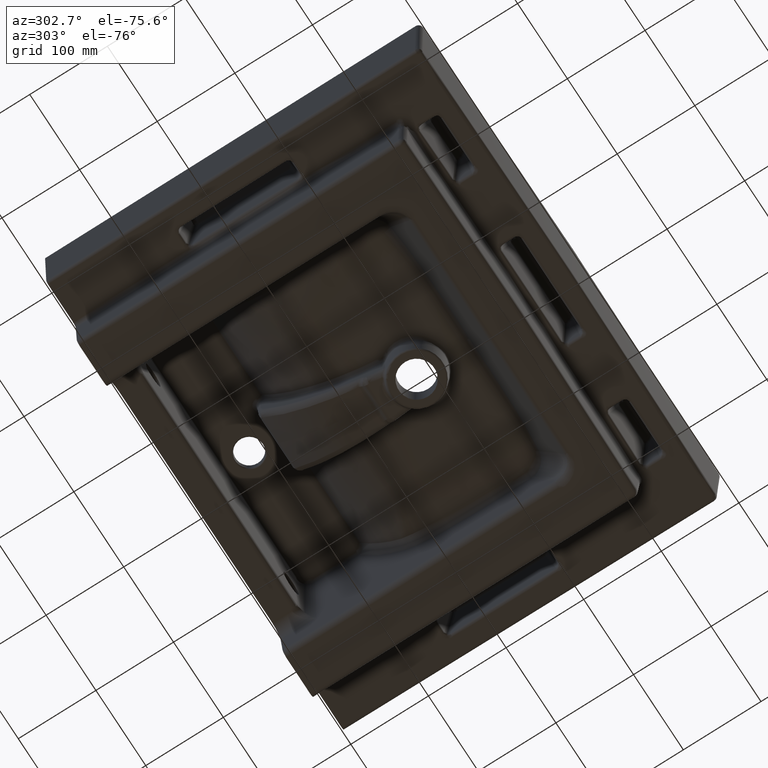
[diagram: clean part render]
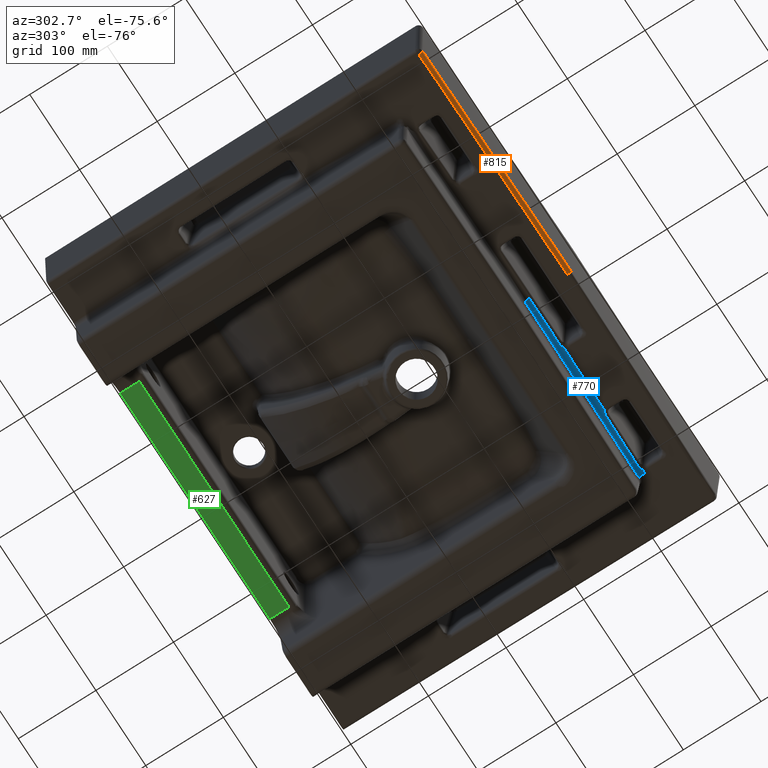
[diagram: same view with three faces highlighted in distinct colors, each labeled with its STEP entity id]
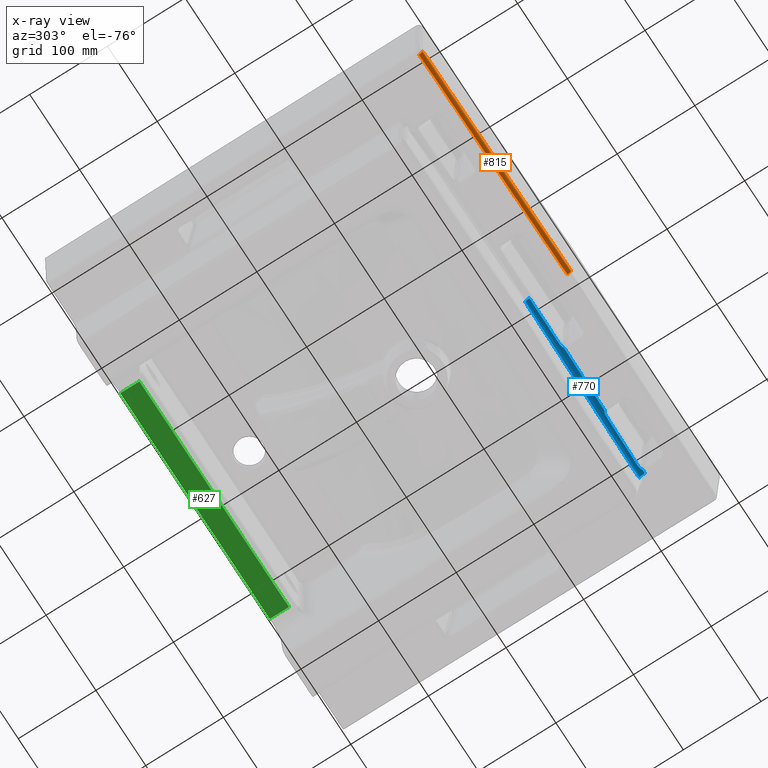
[diagram: x-ray of the same camera — body ghosted, the three highlighted faces saturated]
A machine part, auxiliary view with three faces highlighted in distinct colors.
The next image is the same camera in x-ray (body ghosted, the three faces saturated) — at least one of them is partly hidden behind the body in this view.
Their STEP definitions:

[orange] entity #815 — the highlighted face is a freeform B-spline surface patch.
#261=(
BOUNDED_SURFACE()
B_SPLINE_SURFACE(3,2,((#22861,#22862,#22863),(#22864,#22865,#22866),(#22867,
#22868,#22869),(#22870,#22871,#22872)),.UNSPECIFIED.,.F.,.F.,.F.)
B_SPLINE_SURFACE_WITH_KNOTS((4,4),(3,3),(0.,1.),(0.,1.),.UNSPECIFIED.)
GEOMETRIC_REPRESENTATION_ITEM()
RATIONAL_B_SPLINE_SURFACE(((1.,0.716301944159823,1.),(1.,0.716301944159823,
1.),(1.,0.716301946223284,1.),(1.,0.716301946223284,1.)))
REPRESENTATION_ITEM('')
SURFACE()
);
#530=CIRCLE('',#5243,5.);
#815=ADVANCED_FACE('',(#1167),#261,.T.);
#1167=FACE_OUTER_BOUND('',#1509,.T.);
#1509=EDGE_LOOP('',(#2798,#2799,#2800,#2801,#2802));
#2798=ORIENTED_EDGE('',*,*,#4132,.F.);
#2799=ORIENTED_EDGE('',*,*,#4371,.T.);
#2800=ORIENTED_EDGE('',*,*,#4394,.T.);
#2801=ORIENTED_EDGE('',*,*,#4331,.T.);
#2802=ORIENTED_EDGE('',*,*,#3869,.T.);
#3421=VERTEX_POINT('',#6282);
#3422=VERTEX_POINT('',#6287);
#3618=VERTEX_POINT('',#13053);
#3724=VERTEX_POINT('',#17112);
#3754=VERTEX_POINT('',#22089);
#3869=EDGE_CURVE('',#3422,#3421,#4625,.T.);
#4132=EDGE_CURVE('',#3618,#3421,#4787,.T.);
#4331=EDGE_CURVE('',#3724,#3422,#4926,.T.);
#4371=EDGE_CURVE('',#3618,#3754,#4958,.T.);
#4394=EDGE_CURVE('',#3754,#3724,#530,.T.);
#4625=B_SPLINE_CURVE_WITH_KNOTS('',3,(#6283,#6284,#6285,#6286),
 .UNSPECIFIED.,.F.,.F.,(4,4),(0.,1.),.UNSPECIFIED.);
#4787=B_SPLINE_CURVE_WITH_KNOTS('',3,(#13846,#13847,#13848,#13849,#13850,
#13851),.UNSPECIFIED.,.F.,.F.,(4,2,4),(0.,0.5,1.),.UNSPECIFIED.);
#4926=B_SPLINE_CURVE_WITH_KNOTS('',3,(#17108,#17109,#17110,#17111),
 .UNSPECIFIED.,.F.,.F.,(4,4),(0.,1.),.UNSPECIFIED.);
#4958=B_SPLINE_CURVE_WITH_KNOTS('',3,(#22085,#22086,#22087,#22088),
 .UNSPECIFIED.,.F.,.F.,(4,4),(0.,1.),.UNSPECIFIED.);
#5243=AXIS2_PLACEMENT_3D('',#22860,#5789,#5790);
#5789=DIRECTION('',(0.999845815156996,-0.0175597811217364,2.22010369012484E-014));
#5790=DIRECTION('',(0.0175597811217343,0.999845815156997,0.));
#6282=CARTESIAN_POINT('',(0.,-471.532402330576,-98.552097140303));
#6283=CARTESIAN_POINT('',(-253.118804025366,-469.616052794951,-98.552097140303));
#6284=CARTESIAN_POINT('',(-168.750643127437,-470.89128896073,-98.552097140303));
#6285=CARTESIAN_POINT('',(-84.3776666548289,-471.53046519923,-98.552097140303));
#6286=CARTESIAN_POINT('',(0.00013431991699448,-471.532402336745,-98.552097140303));
#6287=CARTESIAN_POINT('',(-253.118804025366,-469.616052794951,-98.5520971403029));
#13053=CARTESIAN_POINT('',(-8.36581950348611E-013,-476.530688958807,-93.6829819219357));
#13846=CARTESIAN_POINT('',(-1.95697289937705E-005,-476.530688959256,-93.6829819219356));
#13847=CARTESIAN_POINT('',(-2.03432832633648E-005,-476.496994496331,-94.9697211537802));
#13848=CARTESIAN_POINT('',(-3.30534705803792E-005,-475.943364386392,-96.235424730055));
#13849=CARTESIAN_POINT('',(-7.53882952947363E-005,-474.099344854948,-98.0317890127837));
#13850=CARTESIAN_POINT('',(-0.00010476895399647,-472.819582653067,-98.552097140303));
#13851=CARTESIAN_POINT('',(-0.000134319917062792,-471.532402336745,-98.552097140303));
#17108=CARTESIAN_POINT('',(-294.149267255659,-468.94566979169,-98.552097140303));
#17109=CARTESIAN_POINT('',(-280.472729813426,-469.185863829959,-98.552097140303));
#17110=CARTESIAN_POINT('',(-266.795888213439,-469.409321817134,-98.5520971403029));
#17111=CARTESIAN_POINT('',(-253.118804025366,-469.616052794951,-98.5520971403029));
#17112=CARTESIAN_POINT('',(-294.149267255659,-468.94566979169,-98.552097140303));
#22085=CARTESIAN_POINT('',(1.956972899377E-005,-476.530688959256,-93.6829819219356));
#22086=CARTESIAN_POINT('',(-98.0844700461965,-476.528437145684,-93.6829818915332));
#22087=CARTESIAN_POINT('',(-196.167670663442,-475.665527907224,-93.6829818715174));
#22088=CARTESIAN_POINT('',(-294.237036074771,-473.943185756253,-93.6829818923743));
#22089=CARTESIAN_POINT('',(-294.237036074771,-473.943185756253,-93.6829818923745));
#22860=CARTESIAN_POINT('',(-294.149267255659,-468.94566979169,-93.5520971403031));
#22861=CARTESIAN_POINT('',(-294.149267255659,-468.94566979169,-98.5520971403031));
#22862=CARTESIAN_POINT('',(-294.234797162637,-473.815703134912,-98.5520971403031));
#22863=CARTESIAN_POINT('',(-294.237036074771,-473.943185756253,-93.6829818923745));
#22864=CARTESIAN_POINT('',(-196.108859598057,-470.667503366481,-98.5520971403031));
#22865=CARTESIAN_POINT('',(-196.165918732069,-475.538036739697,-98.552097121252));
#22866=CARTESIAN_POINT('',(-196.167412367064,-475.665532443895,-93.6829818584107));
#22867=CARTESIAN_POINT('',(-98.0557812474486,-471.530151172087,-98.5520971403029));
#22868=CARTESIAN_POINT('',(-98.0844071308515,-476.400934851952,-98.552097082469));
#22869=CARTESIAN_POINT('',(-98.0851564684617,-476.528437130766,-93.6829818594229));
#22870=CARTESIAN_POINT('',(0.000134319917062792,-471.532402336745,-98.5520971403029));
#22871=CARTESIAN_POINT('',(2.24969148392759E-005,-476.403186650986,-98.552097140303));
#22872=CARTESIAN_POINT('',(1.95697289937695E-005,-476.530688959256,-93.6829819219356));

[blue] entity #770 — the highlighted face is a freeform B-spline surface patch.
#234=(
BOUNDED_SURFACE()
B_SPLINE_SURFACE(3,2,((#16475,#16476,#16477),(#16478,#16479,#16480),(#16481,
#16482,#16483),(#16484,#16485,#16486)),.UNSPECIFIED.,.F.,.F.,.F.)
B_SPLINE_SURFACE_WITH_KNOTS((4,4),(3,3),(0.,1.),(0.,1.),.UNSPECIFIED.)
GEOMETRIC_REPRESENTATION_ITEM()
RATIONAL_B_SPLINE_SURFACE(((1.,0.722362017241524,1.),(1.,0.722362017241524,
1.),(1.,0.722363955288953,1.),(1.,0.722363955288953,1.)))
REPRESENTATION_ITEM('')
SURFACE()
);
#513=CIRCLE('',#5219,7.);
#770=ADVANCED_FACE('',(#1122),#234,.T.);
#1122=FACE_OUTER_BOUND('',#1464,.T.);
#1464=EDGE_LOOP('',(#2582,#2583,#2584,#2585,#2586,#2587,#2588,#2589,#2590,
#2591));
#2582=ORIENTED_EDGE('',*,*,#4277,.T.);
#2583=ORIENTED_EDGE('',*,*,#4278,.T.);
#2584=ORIENTED_EDGE('',*,*,#4279,.T.);
#2585=ORIENTED_EDGE('',*,*,#4052,.F.);
#2586=ORIENTED_EDGE('',*,*,#4280,.F.);
#2587=ORIENTED_EDGE('',*,*,#3862,.F.);
#2588=ORIENTED_EDGE('',*,*,#4281,.T.);
#2589=ORIENTED_EDGE('',*,*,#4282,.T.);
#2590=ORIENTED_EDGE('',*,*,#4283,.T.);
#2591=ORIENTED_EDGE('',*,*,#3854,.F.);
#3406=VERTEX_POINT('',#6192);
#3407=VERTEX_POINT('',#6197);
#3414=VERTEX_POINT('',#6233);
#3415=VERTEX_POINT('',#6238);
#3576=VERTEX_POINT('',#7985);
#3577=VERTEX_POINT('',#7990);
#3687=VERTEX_POINT('',#16431);
#3688=VERTEX_POINT('',#16445);
#3689=VERTEX_POINT('',#16457);
#3690=VERTEX_POINT('',#16468);
#3854=EDGE_CURVE('',#3406,#3407,#4614,.T.);
#3862=EDGE_CURVE('',#3414,#3415,#4620,.T.);
#4052=EDGE_CURVE('',#3576,#3577,#4730,.T.);
#4277=EDGE_CURVE('',#3406,#3687,#4881,.T.);
#4278=EDGE_CURVE('',#3687,#3688,#4882,.T.);
#4279=EDGE_CURVE('',#3688,#3577,#4883,.T.);
#4280=EDGE_CURVE('',#3415,#3576,#513,.T.);
#4281=EDGE_CURVE('',#3414,#3689,#4884,.T.);
#4282=EDGE_CURVE('',#3689,#3690,#4885,.T.);
#4283=EDGE_CURVE('',#3690,#3407,#4886,.T.);
#4614=B_SPLINE_CURVE_WITH_KNOTS('',3,(#6193,#6194,#6195,#6196),
 .UNSPECIFIED.,.F.,.F.,(4,4),(0.,1.),.UNSPECIFIED.);
#4620=B_SPLINE_CURVE_WITH_KNOTS('',3,(#6234,#6235,#6236,#6237),
 .UNSPECIFIED.,.F.,.F.,(4,4),(0.,1.),.UNSPECIFIED.);
#4730=B_SPLINE_CURVE_WITH_KNOTS('',3,(#7986,#7987,#7988,#7989),
 .UNSPECIFIED.,.F.,.F.,(4,4),(0.,1.),.UNSPECIFIED.);
#4881=B_SPLINE_CURVE_WITH_KNOTS('',3,(#16427,#16428,#16429,#16430),
 .UNSPECIFIED.,.F.,.F.,(4,4),(0.,1.),.UNSPECIFIED.);
#4882=B_SPLINE_CURVE_WITH_KNOTS('',3,(#16432,#16433,#16434,#16435,#16436,
#16437,#16438,#16439,#16440,#16441,#16442,#16443,#16444),.UNSPECIFIED.,
 .F.,.F.,(4,3,3,3,4),(0.,0.0634146614994543,0.462657037880694,0.999968901883683,
1.),.UNSPECIFIED.);
#4883=B_SPLINE_CURVE_WITH_KNOTS('',3,(#16446,#16447,#16448,#16449,#16450,
#16451),.UNSPECIFIED.,.F.,.F.,(4,2,4),(0.,0.5,1.),.UNSPECIFIED.);
#4884=B_SPLINE_CURVE_WITH_KNOTS('',3,(#16453,#16454,#16455,#16456),
 .UNSPECIFIED.,.F.,.F.,(4,4),(0.,1.),.UNSPECIFIED.);
#4885=B_SPLINE_CURVE_WITH_KNOTS('',3,(#16458,#16459,#16460,#16461,#16462,
#16463,#16464,#16465,#16466,#16467),.UNSPECIFIED.,.F.,.F.,(4,3,3,4),(0.,
0.499834722382259,0.872014069797649,1.),.UNSPECIFIED.);
#4886=B_SPLINE_CURVE_WITH_KNOTS('',3,(#16469,#16470,#16471,#16472,#16473,
#16474),.UNSPECIFIED.,.F.,.F.,(4,2,4),(0.,0.5,1.),.UNSPECIFIED.);
#5219=AXIS2_PLACEMENT_3D('',#16452,#5730,#5731);
#5730=DIRECTION('',(-0.9997974625359,-0.0201254542004632,0.));
#5731=DIRECTION('',(0.0201254542004647,-0.999797462535899,0.));
#6192=CARTESIAN_POINT('',(67.1894115665462,-424.151097464889,-98.552097140303));
#6193=CARTESIAN_POINT('',(67.1894115665462,-424.151097464889,-98.552097140303));
#6194=CARTESIAN_POINT('',(94.501742027394,-423.980360005082,-98.552097140303));
#6195=CARTESIAN_POINT('',(121.813295375378,-423.715714860263,-98.5520971403029));
#6196=CARTESIAN_POINT('',(149.124071737289,-423.35717735217,-98.5520971403029));
#6197=CARTESIAN_POINT('',(149.124071737289,-423.35717735217,-98.552097140303));
#6233=CARTESIAN_POINT('',(228.115010401858,-422.058311488103,-98.552097140303));
#6234=CARTESIAN_POINT('',(228.115010401858,-422.058311488102,-98.5520971403029));
#6235=CARTESIAN_POINT('',(229.587375023904,-422.029219489459,-98.5520971403029));
#6236=CARTESIAN_POINT('',(231.059734804446,-421.999854583227,-98.552097140303));
#6237=CARTESIAN_POINT('',(232.532089743471,-421.970216768567,-98.552097140303));
#6238=CARTESIAN_POINT('',(232.532089743471,-421.970216768567,-98.552097140303));
#7985=CARTESIAN_POINT('',(232.391345614316,-414.978293913349,-105.246800764958));
#7986=CARTESIAN_POINT('',(232.391345614316,-414.978293913349,-105.246800764958));
#7987=CARTESIAN_POINT('',(154.936763343403,-416.537419419805,-105.246776093983));
#7988=CARTESIAN_POINT('',(77.4702545927588,-417.34091733227,-105.246761565469));
#7989=CARTESIAN_POINT('',(-4.51489889140374E-006,-417.388318865664,-105.246761565693));
#7990=CARTESIAN_POINT('',(5.53809538300226E-014,-417.388318865661,-105.246761565766));
#16427=CARTESIAN_POINT('',(67.1894115665462,-424.151097464889,-98.552097140303));
#16428=CARTESIAN_POINT('',(65.0640273266445,-422.888268336807,-98.5520971403024));
#16429=CARTESIAN_POINT('',(62.5844803466735,-422.397367063447,-98.7826803126526));
#16430=CARTESIAN_POINT('',(60.1188873157854,-422.411239131571,-98.7827013659534));
#16431=CARTESIAN_POINT('',(60.1188873157854,-422.411239131571,-98.7827013659534));
#16432=CARTESIAN_POINT('',(60.1188873157854,-422.411239131571,-98.7827013659534));
#16433=CARTESIAN_POINT('',(58.8480701997107,-422.418389079428,-98.7827122172556));
#16434=CARTESIAN_POINT('',(57.5772517548827,-422.425306440292,-98.7827307658413));
#16435=CARTESIAN_POINT('',(56.3064321381339,-422.431997139629,-98.7827554535024));
#16436=CARTESIAN_POINT('',(48.3056835070642,-422.474120036425,-98.782910880573));
#16437=CARTESIAN_POINT('',(40.3048841081326,-422.507258882133,-98.7833098475895));
#16438=CARTESIAN_POINT('',(32.3040656581321,-422.532892577768,-98.7835627012386));
#16439=CARTESIAN_POINT('',(21.5363360177491,-422.567391136384,-98.7839029988905));
#16440=CARTESIAN_POINT('',(10.7685583294908,-422.58829514217,-98.7839761945689));
#16441=CARTESIAN_POINT('',(0.000779014033558498,-422.599212515704,-98.782836327621));
#16442=CARTESIAN_POINT('',(0.000155804575473637,-422.599213147572,-98.7828362616486));
#16443=CARTESIAN_POINT('',(-0.000467404882626026,-422.599213779425,-98.78283619568));
#16444=CARTESIAN_POINT('',(-0.00109061434074062,-422.599214411264,-98.7828361297152));
#16445=CARTESIAN_POINT('',(-3.81831725691115E-010,-422.599216285721,-98.7828356361441));
#16446=CARTESIAN_POINT('',(-0.00109061357555803,-422.599215661677,-98.7828358004634));
#16447=CARTESIAN_POINT('',(-0.00196710191922057,-421.166735017839,-99.1600283164545));
#16448=CARTESIAN_POINT('',(-0.00276564140148621,-419.861649376989,-100.005585389129));
#16449=CARTESIAN_POINT('',(-0.00390332876933913,-418.002280516042,-102.312065212128));
#16450=CARTESIAN_POINT('',(-0.00423945529829386,-417.452935222303,-103.7668626434));
#16451=CARTESIAN_POINT('',(-0.00427899034630212,-417.388321481077,-105.246761565693));
#16452=CARTESIAN_POINT('',(232.532089743471,-421.970216768567,-105.552097140303));
#16453=CARTESIAN_POINT('',(228.115010401858,-422.058311488103,-98.552097140303));
#16454=CARTESIAN_POINT('',(225.946396613406,-420.711353199775,-98.5520971403029));
#16455=CARTESIAN_POINT('',(223.374198211208,-420.213794237324,-98.8254760699426));
#16456=CARTESIAN_POINT('',(220.829314910659,-420.262529092217,-98.8254760798534));
#16457=CARTESIAN_POINT('',(220.829314910659,-420.262529092217,-98.8254760798535));
#16458=CARTESIAN_POINT('',(220.829314910659,-420.262529092217,-98.8254760798535));
#16459=CARTESIAN_POINT('',(210.086081867343,-420.468263438987,-98.825476121692));
#16460=CARTESIAN_POINT('',(199.342560722822,-420.659466835694,-98.8254761311622));
#16461=CARTESIAN_POINT('',(188.598810434911,-420.836137703189,-98.8254762093968));
#16462=CARTESIAN_POINT('',(180.598958840747,-420.967687737683,-98.8254762676507));
#16463=CARTESIAN_POINT('',(172.5989706945,-421.091180564691,-98.8254763625979));
#16464=CARTESIAN_POINT('',(164.598870338834,-421.206615565847,-98.8254765109434));
#16465=CARTESIAN_POINT('',(161.847775333773,-421.246311649767,-98.8254765619569));
#16466=CARTESIAN_POINT('',(159.09666641451,-421.285054863729,-98.8254766190992));
#16467=CARTESIAN_POINT('',(156.345544571027,-421.322845183369,-98.8254766824655));
#16468=CARTESIAN_POINT('',(156.345544571027,-421.322845183369,-98.8254766824655));
#16469=CARTESIAN_POINT('',(156.345544571027,-421.322845183369,-98.8254766824655));
#16470=CARTESIAN_POINT('',(155.073890917937,-421.340313038577,-98.8254767117553));
#16471=CARTESIAN_POINT('',(153.810300553264,-421.502495466633,-98.777892586011));
#16472=CARTESIAN_POINT('',(151.3660349649,-422.158450007489,-98.643049050482));
#16473=CARTESIAN_POINT('',(150.183766392303,-422.64974293771,-98.552097140303));
#16474=CARTESIAN_POINT('',(149.124071737289,-423.357177352171,-98.552097140303));
#16475=CARTESIAN_POINT('',(232.532089743471,-421.970216768567,-98.552097140303));
#16476=CARTESIAN_POINT('',(232.397227466369,-415.270494064406,-98.552097140303));
#16477=CARTESIAN_POINT('',(232.391345614316,-414.978293913349,-105.246800764958));
#16478=CARTESIAN_POINT('',(155.029681404003,-423.530303896249,-98.552097140303));
#16479=CARTESIAN_POINT('',(154.938394666406,-416.829727709161,-98.5520971381514));
#16480=CARTESIAN_POINT('',(154.934412786952,-416.537466735446,-105.246776093038));
#16481=CARTESIAN_POINT('',(77.5165722044185,-424.334227835922,-98.5520971403029));
#16482=CARTESIAN_POINT('',(77.4688711112436,-417.633213441155,-98.552097133852));
#16483=CARTESIAN_POINT('',(77.4667904539002,-417.34091945186,-105.24676156559));
#16484=CARTESIAN_POINT('',(4.78778064303488E-009,-424.38165772904,-98.5520971403029));
#16485=CARTESIAN_POINT('',(-0.00410014442955069,-417.680616656282,-98.5520971403029));
#16486=CARTESIAN_POINT('',(-0.00427899034630209,-417.388321481077,-105.246761565693));

[green] entity #627 — the highlighted planar face has unit normal (0, 0, -1).
#627=ADVANCED_FACE('',(#987),#957,.T.);
#957=PLANE('',#5085);
#987=FACE_OUTER_BOUND('',#1312,.T.);
#1312=EDGE_LOOP('',(#1912,#1913,#1914,#1915));
#1666=LINE('',#6562,#1748);
#1667=LINE('',#6565,#1749);
#1668=LINE('',#6567,#1750);
#1669=LINE('',#6569,#1751);
#1748=VECTOR('',#5418,1.);
#1749=VECTOR('',#5419,1.);
#1750=VECTOR('',#5420,1.);
#1751=VECTOR('',#5421,1.);
#1912=ORIENTED_EDGE('',*,*,#3899,.T.);
#1913=ORIENTED_EDGE('',*,*,#3900,.F.);
#1914=ORIENTED_EDGE('',*,*,#3901,.F.);
#1915=ORIENTED_EDGE('',*,*,#3902,.T.);
#3451=VERTEX_POINT('',#6563);
#3452=VERTEX_POINT('',#6564);
#3453=VERTEX_POINT('',#6566);
#3454=VERTEX_POINT('',#6568);
#3899=EDGE_CURVE('',#3451,#3452,#1666,.T.);
#3900=EDGE_CURVE('',#3453,#3452,#1667,.T.);
#3901=EDGE_CURVE('',#3454,#3453,#1668,.T.);
#3902=EDGE_CURVE('',#3454,#3451,#1669,.T.);
#5085=AXIS2_PLACEMENT_3D('',#6570,#5422,#5423);
#5418=DIRECTION('',(-1.,0.,0.));
#5419=DIRECTION('',(0.,-1.,0.));
#5420=DIRECTION('',(-1.,0.,0.));
#5421=DIRECTION('',(0.,-1.,0.));
#5422=DIRECTION('',(0.,0.,-1.));
#5423=DIRECTION('',(-1.,0.,0.));
#6562=CARTESIAN_POINT('',(488.549917774871,-16.5673482096808,-98.552097140303));
#6563=CARTESIAN_POINT('',(150.02991391961,-16.5673482096808,-98.552097140303));
#6564=CARTESIAN_POINT('',(-150.02991391961,-16.5673482096808,-98.552097140303));
#6565=CARTESIAN_POINT('',(-150.02991391961,-868.829275146403,-98.552097140303));
#6566=CARTESIAN_POINT('',(-150.02991391961,8.17072485359749,-98.552097140303));
#6567=CARTESIAN_POINT('',(488.549917774871,8.17072485359749,-98.552097140303));
#6568=CARTESIAN_POINT('',(150.02991391961,8.17072485359749,-98.552097140303));
#6569=CARTESIAN_POINT('',(150.02991391961,-868.829275146403,-98.552097140303));
#6570=CARTESIAN_POINT('',(488.549917774871,-868.829275146403,-98.552097140303));